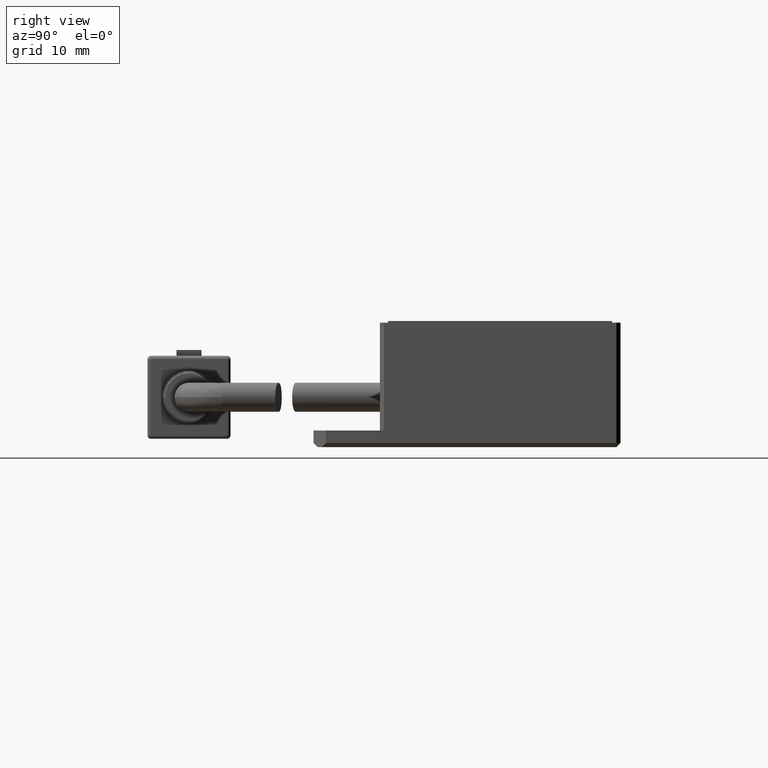
[diagram: clean part render]
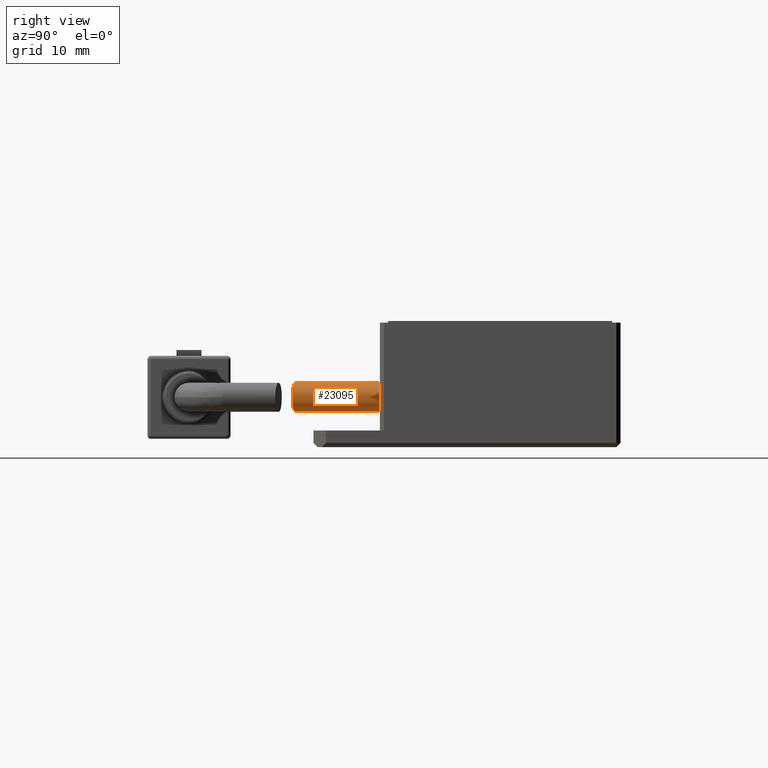
[diagram: same view with one face highlighted and labeled with its STEP entity id]
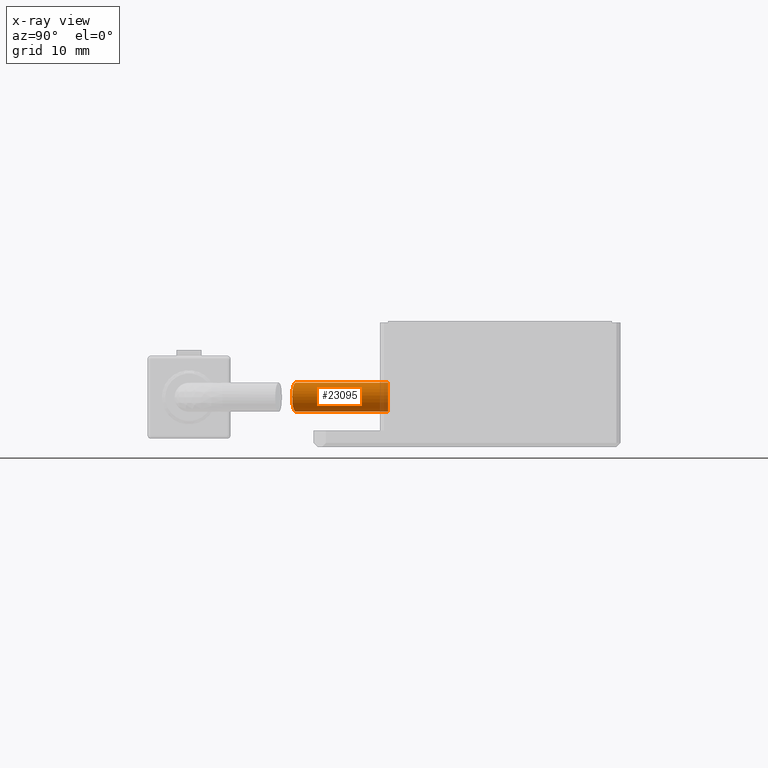
[diagram: x-ray of the same camera — body ghosted, the highlighted face saturated]
A machine part, right view. The second image highlights one B-rep face of the part: STEP entity #23095.
The next image is the same camera in x-ray: the body ghosted, the highlighted face saturated — about 8% of this face is hidden behind the body in this view.
In plain terms, the highlighted cylindrical surface (edge-blend (fillet) strip) has radius 1.75 mm, axis along (-0, 1, 0).
Its self-contained STEP definition (entity closure, byte-faithful):
#1276 = CARTESIAN_POINT ( 'NONE',  ( 2.220340590680550000, -25.62043051789699900, 4.233325397064796800 ) ) ;
#1366 = CARTESIAN_POINT ( 'NONE',  ( 0.9226563756604321300, -25.31101379792079000, 2.294252752377428500 ) ) ;
#1550 = VERTEX_POINT ( 'NONE', #14182 ) ;
#1794 = DIRECTION ( 'NONE',  ( 0.0000000000000000000, 0.0000000000000000000, -1.000000000000000000 ) ) ;
#2551 = CARTESIAN_POINT ( 'NONE',  ( 0.4705994654448236700, -14.05364642993505500, 2.249999999983630400 ) ) ;
#2753 = EDGE_CURVE ( 'NONE', #15068, #1550, #19205, .T. ) ;
#2997 = CARTESIAN_POINT ( 'NONE',  ( 0.4705994654448236700, -34.05364642993505000, 2.249999999983630400 ) ) ;
#3238 = CARTESIAN_POINT ( 'NONE',  ( 0.9170992705115346100, -25.30954815112588800, 5.695806528843846200 ) ) ;
#3330 = CARTESIAN_POINT ( 'NONE',  ( 2.209163843499488200, -25.61803601229597400, 3.768912053481426700 ) ) ;
#3348 = CYLINDRICAL_SURFACE ( 'NONE', #6592, 1.749999999999999800 ) ;
#3413 = CARTESIAN_POINT ( 'NONE',  ( 0.4705994654448235100, -25.19990101793981600, 2.249999999983630400 ) ) ;
#4789 = AXIS2_PLACEMENT_3D ( 'NONE', #26354, #14098, #1794 ) ;
#5306 = CARTESIAN_POINT ( 'NONE',  ( 1.236856494025270000, -25.38904170372084200, 5.577417161146446000 ) ) ;
#5389 = CARTESIAN_POINT ( 'NONE',  ( 2.129447635897111700, -25.60068846934982300, 3.430677279984547300 ) ) ;
#5513 = CARTESIAN_POINT ( 'NONE',  ( 0.4705994654448234500, -34.05364642993505000, 5.749999999983630000 ) ) ;
#6250 = CARTESIAN_POINT ( 'NONE',  ( 0.4705994654448235100, -25.19990101793981600, 2.249999999983630400 ) ) ;
#6592 = AXIS2_PLACEMENT_3D ( 'NONE', #12819, #8787, #17042 ) ;
#7375 = CARTESIAN_POINT ( 'NONE',  ( 1.526346058954209500, -25.46018412444359000, 5.400271376303659400 ) ) ;
#7464 = CARTESIAN_POINT ( 'NONE',  ( 1.984025661186550800, -25.56817217877227900, 3.113870852844187600 ) ) ;
#7575 = DIRECTION ( 'NONE',  ( -6.162975822039154700E-033, 1.000000000000000000, 0.0000000000000000000 ) ) ;
#8787 = DIRECTION ( 'NONE',  ( -6.162975822039154700E-033, 1.000000000000000000, 0.0000000000000000000 ) ) ;
#9367 = CARTESIAN_POINT ( 'NONE',  ( 0.4705994654448235100, -25.19990101793981600, 5.749999999983629100 ) ) ;
#9457 = CARTESIAN_POINT ( 'NONE',  ( 1.779748762345098500, -25.52088140049359000, 5.166920295776360900 ) ) ;
#9542 = CARTESIAN_POINT ( 'NONE',  ( 1.782025022611526400, -25.52141980853176800, 2.835515580640701300 ) ) ;
#10353 = EDGE_CURVE ( 'NONE', #20816, #1550, #14269, .T. ) ;
#11525 = CARTESIAN_POINT ( 'NONE',  ( 1.982590036491467700, -25.56784676534852000, 4.888631675858253100 ) ) ;
#11622 = CARTESIAN_POINT ( 'NONE',  ( 1.528691452692074700, -25.46075403154351600, 2.601499705496508800 ) ) ;
#12442 = EDGE_CURVE ( 'NONE', #15068, #16836, #20376, .T. ) ;
#12819 = CARTESIAN_POINT ( 'NONE',  ( 0.4705994654448236700, -34.05364642993505000, 3.999999999983630400 ) ) ;
#12862 = EDGE_LOOP ( 'NONE', ( #20308, #19552, #25392, #15605 ) ) ;
#13456 = EDGE_CURVE ( 'NONE', #16836, #20816, #20053, .T. ) ;
#13565 = CARTESIAN_POINT ( 'NONE',  ( 2.172832935185684500, -25.61034858166789300, 4.466923281395895500 ) ) ;
#13660 = CARTESIAN_POINT ( 'NONE',  ( 1.237548991285970100, -25.38921324399208500, 2.422931293328921300 ) ) ;
#13749 = VECTOR ( 'NONE', #7575, 1000.000000000000000 ) ;
#14098 = DIRECTION ( 'NONE',  ( 6.162975822039154700E-033, -1.000000000000000000, -0.0000000000000000000 ) ) ;
#14182 = CARTESIAN_POINT ( 'NONE',  ( 0.4705994654448234500, -14.05364642993505500, 5.749999999983630900 ) ) ;
#14269 = CIRCLE ( 'NONE', #4789, 1.749999999999999800 ) ;
#15068 = VERTEX_POINT ( 'NONE', #18034 ) ;
#15557 = CARTESIAN_POINT ( 'NONE',  ( 0.6965918080035710100, -25.25497713656482200, 5.738979390417673800 ) ) ;
#15605 = ORIENTED_EDGE ( 'NONE', *, *, #10353, .T. ) ;
#15641 = CARTESIAN_POINT ( 'NONE',  ( 2.220727273564398800, -25.62051373913998000, 3.886261959677683700 ) ) ;
#15734 = CARTESIAN_POINT ( 'NONE',  ( 0.6985309912472748000, -25.25495981535253900, 2.249999999983629100 ) ) ;
#16836 = VERTEX_POINT ( 'NONE', #6250 ) ;
#17042 = DIRECTION ( 'NONE',  ( 0.0000000000000000000, 0.0000000000000000000, -1.000000000000000000 ) ) ;
#17624 = CARTESIAN_POINT ( 'NONE',  ( 1.026576531974168400, -25.33682056819147000, 5.663215029880039000 ) ) ;
#17717 = CARTESIAN_POINT ( 'NONE',  ( 2.163334949554194700, -25.60808408685989700, 3.541029067901631900 ) ) ;
#18034 = CARTESIAN_POINT ( 'NONE',  ( 0.4705994654448235100, -25.19990101793981600, 5.749999999983629100 ) ) ;
#19205 = LINE ( 'NONE', #5513, #13749 ) ;
#19552 = ORIENTED_EDGE ( 'NONE', *, *, #12442, .T. ) ;
#19689 = CARTESIAN_POINT ( 'NONE',  ( 1.336791088347850700, -25.41377090730420500, 5.524818962831508500 ) ) ;
#19775 = CARTESIAN_POINT ( 'NONE',  ( 2.039982084639548900, -25.58078056934519000, 3.217092721508355300 ) ) ;
#20053 = LINE ( 'NONE', #2997, #25495 ) ;
#20308 = ORIENTED_EDGE ( 'NONE', *, *, #2753, .F. ) ;
#20376 = B_SPLINE_CURVE_WITH_KNOTS ( 'NONE', 3,
 ( #9367, #21608, #15557, #3238, #17624, #5306, #19689, #7375, #21699, #9457, #23780, #11525, #25859, #13565, #1276, #15641, #3330, #17717, #5389, #19775, #7464, #21796, #9542, #23875, #11622, #25948, #13660, #1366, #15734, #3413 ),
 .UNSPECIFIED., .F., .F.,
 ( 4, 2, 2, 2, 2, 2, 2, 2, 2, 2, 2, 2, 2, 2, 4 ),
 ( 1.728278130482739700E-014, 0.0003467692703522309700, 0.0006935385406871792200, 0.001040307811022127400, 0.001387077081357075600, 0.001733846351692023600, 0.002080615622026971700, 0.002774154162696866900, 0.003120923433031814700, 0.003467692703366762500, 0.003814461973701709900, 0.004161231244036657700, 0.004508000514371605100, 0.004854769784706553300, 0.005548308325376448900 ),
 .UNSPECIFIED. ) ;
#20816 = VERTEX_POINT ( 'NONE', #2551 ) ;
#21608 = CARTESIAN_POINT ( 'NONE',  ( 0.5845594501789807000, -25.22742902088086600, 5.749999999982521500 ) ) ;
#21699 = CARTESIAN_POINT ( 'NONE',  ( 1.616772546055109000, -25.48205641460345600, 5.327351546331397200 ) ) ;
#21796 = CARTESIAN_POINT ( 'NONE',  ( 1.855268923521330700, -25.53854134236639700, 2.923722058540311400 ) ) ;
#22276 = FACE_OUTER_BOUND ( 'NONE', #12862, .T. ) ;
#23095 = ADVANCED_FACE ( 'NONE', ( #22276 ), #3348, .T. ) ;
#23626 = DIRECTION ( 'NONE',  ( -6.162975822039154700E-033, 1.000000000000000000, 0.0000000000000000000 ) ) ;
#23780 = CARTESIAN_POINT ( 'NONE',  ( 1.852995511739378800, -25.53801304954573900, 5.079241823436966300 ) ) ;
#23875 = CARTESIAN_POINT ( 'NONE',  ( 1.617468887431036100, -25.48222608520157500, 2.673142251845027000 ) ) ;
#25392 = ORIENTED_EDGE ( 'NONE', *, *, #13456, .T. ) ;
#25495 = VECTOR ( 'NONE', #23626, 1000.000000000000000 ) ;
#25859 = CARTESIAN_POINT ( 'NONE',  ( 2.038636577282457300, -25.58047809682036800, 4.785518077406164700 ) ) ;
#25948 = CARTESIAN_POINT ( 'NONE',  ( 1.339338339589920500, -25.41439887055783600, 2.476630545220107800 ) ) ;
#26354 = CARTESIAN_POINT ( 'NONE',  ( 0.4705994654448236700, -14.05364642993505500, 3.999999999983630400 ) ) ;